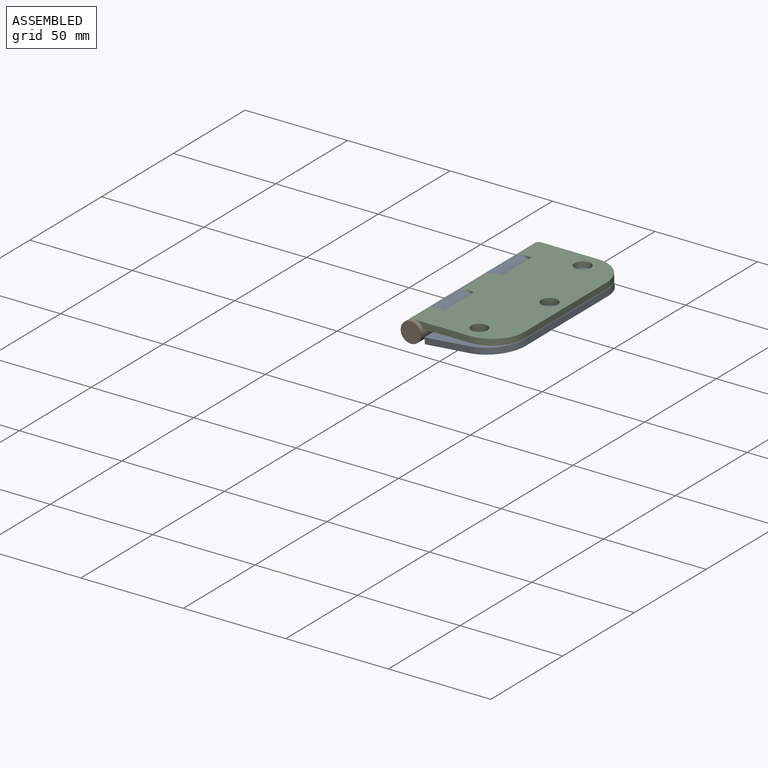
[diagram: assembled view]
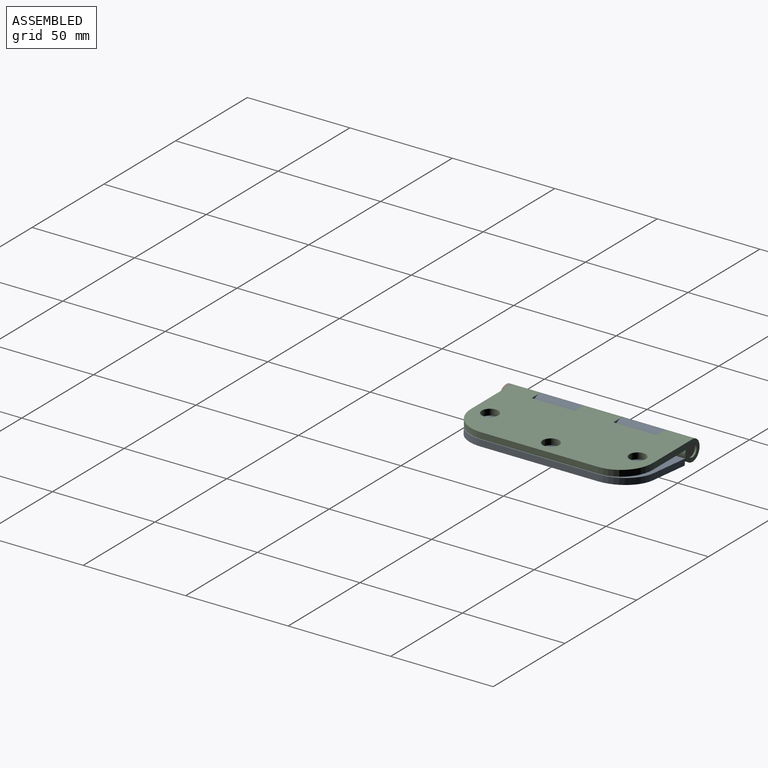
[diagram: assembled view, second angle]
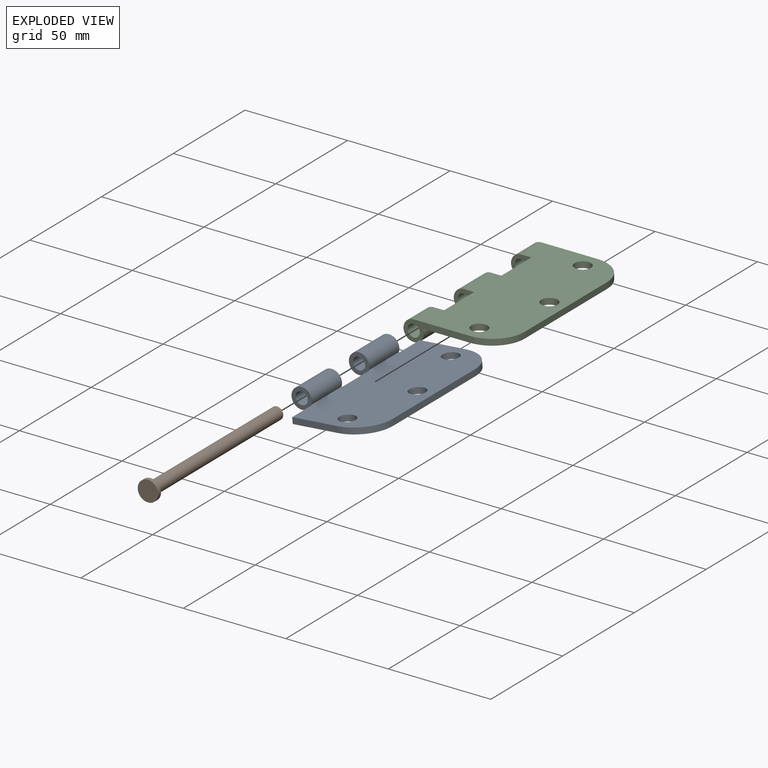
[diagram: exploded view]
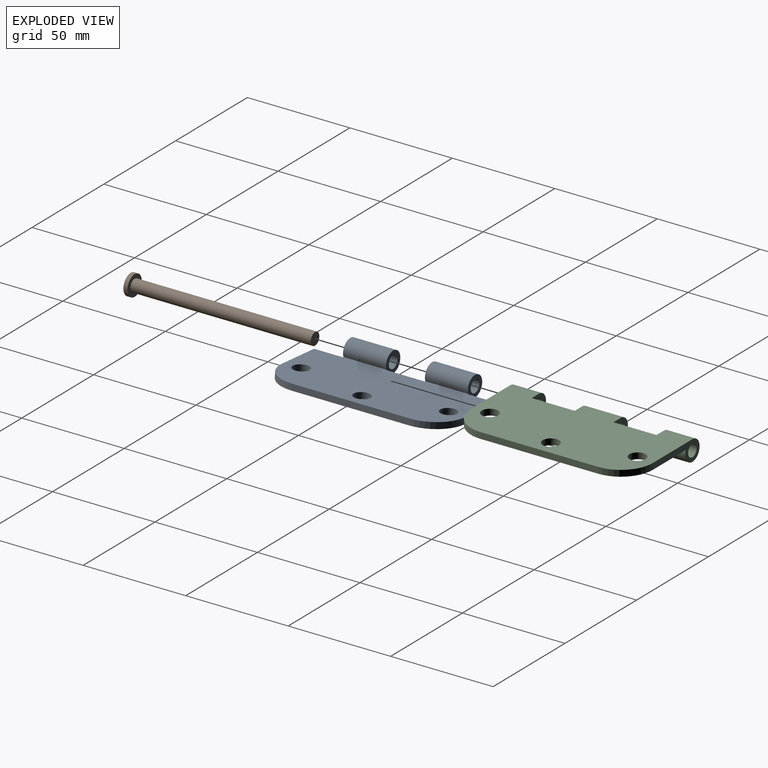
[diagram: exploded view, second angle]
ASSEMBLY  parts=3 mates=2
PART A: 21 faces, bbox 48.1x88.9x10 mm
  f0: plane 22.3x3mm, normal (0,1,0), area 66.9mm2, adj f2,f3,f8,f18
  f1: plane 22.3x3mm, normal (0,-1,0), area 66.9mm2, adj f2,f3,f7,f12
  f2: plane 88.9x43.1mm, normal (0,0,1), area 3338.6mm2, adj f0,f1,f4,f5,f6,f7,f8,f9
  f3: plane 88.9x38.52mm, normal (0,0,-1), area 3146.6mm2, adj f0,f1,f4,f5,f6,f7,f8,f9
  f4: cylinder r=5mm len=20.95mm, axis (0,-1,0), area 536.7mm2, adj f2,f3,f15,f19
  f5: cylinder r=5mm len=20.95mm, axis (0,-1,0), area 536.7mm2, adj f2,f3,f13,f16
  f6: plane 57.3x3mm, normal (1,0,0), area 171.9mm2, adj f2,f3,f7,f8
  f7: cylinder r=15.8mm len=15.8mm, axis (0,0,1), area 74.5mm2, adj f1,f2,f3,f6
  f8: cylinder r=15.8mm len=15.8mm, axis (0,0,-1), area 74.5mm2, adj f0,f2,f3,f6
  f9: cylinder r=4mm len=8mm, axis (0,0,1), area 75.4mm2, adj f2,f3
  f10: cylinder r=4mm len=8mm, axis (0,0,1), area 75.4mm2, adj f2,f3
  f11: cylinder r=4mm len=8mm, axis (0,0,1), area 75.4mm2, adj f2,f3
  f12: plane 14x3mm, normal (-1,0,0), area 42mm2, adj f1,f2,f3,f13
  f13: plane 10x10mm, normal (0,-1,0), area 55.4mm2, adj f2,f3,f5,f12,f20
  f14: plane 19x3mm, normal (-1,0,0), area 57mm2, adj f2,f3,f15,f16
  f15: plane 10x10mm, normal (0,-1,0), area 55.4mm2, adj f2,f3,f4,f14,f17
  f16: plane 10x10mm, normal (0,1,0), area 55.4mm2, adj f2,f3,f5,f14,f20
  f17: cylinder r=3mm len=20.95mm, axis (0,-1,0), area 394.9mm2, adj f15,f19
  f18: plane 14x3mm, normal (-1,0,0), area 42mm2, adj f0,f2,f3,f19
  f19: plane 10x10mm, normal (0,1,0), area 55.4mm2, adj f2,f3,f4,f17,f18
  f20: cylinder r=3mm len=20.95mm, axis (0,-1,0), area 394.9mm2, adj f13,f16
PART B: 5 faces, bbox 90x10x10 mm
  f0: plane 6x6mm, normal (-1,0,0), area 28.3mm2, adj f1
  f1: cylinder r=3mm len=88mm, axis (-1,0,0), area 1658.8mm2, adj f0,f2
  f2: plane 10x10mm, normal (-1,0,0), area 50.3mm2, adj f1,f3
  f3: cylinder r=5mm len=10mm, axis (-1,0,0), area 62.8mm2, adj f2,f4
  f4: plane 10x10mm, normal (1,0,0), area 78.5mm2, adj f3
PART C: 22 faces, bbox 48.1x88.9x10 mm
  f0: plane 88.9x43.1mm, normal (0,0,1), area 3363.6mm2, adj f2,f3,f4,f6,f7,f8,f9,f10
  f1: plane 88.9x38.52mm, normal (0,0,-1), area 3148.7mm2, adj f2,f3,f4,f6,f7,f8,f9,f10
  f2: cylinder r=5mm len=14mm, axis (0,-1,0), area 358.7mm2, adj f0,f1,f6,f20
  f3: cylinder r=5mm len=18.9mm, axis (0,-1,0), area 484.2mm2, adj f0,f1,f16,f21
  f4: cylinder r=5mm len=14mm, axis (0,-1,0), area 358.7mm2, adj f0,f1,f7,f17
  f5: cylinder r=3mm len=14mm, axis (0,-1,0), area 263.9mm2, adj f6,f20
  f6: plane 32.3x10mm, normal (0,1,0), area 122.3mm2, adj f0,f1,f2,f5,f10
  f7: plane 32.3x10mm, normal (0,-1,0), area 122.3mm2, adj f0,f1,f4,f9,f14
  f8: plane 57.3x3mm, normal (1,0,0), area 171.9mm2, adj f0,f1,f9,f10
  f9: cylinder r=15.8mm len=15.8mm, axis (0,0,1), area 74.5mm2, adj f0,f1,f7,f8
  f10: cylinder r=15.8mm len=15.8mm, axis (0,0,-1), area 74.5mm2, adj f0,f1,f6,f8
  f11: cylinder r=4mm len=8mm, axis (0,0,1), area 75.4mm2, adj f0,f1
  f12: cylinder r=4mm len=8mm, axis (0,0,1), area 75.4mm2, adj f0,f1
  f13: cylinder r=4mm len=8mm, axis (0,0,1), area 75.4mm2, adj f0,f1
  f14: cylinder r=3mm len=14mm, axis (0,-1,0), area 263.9mm2, adj f7,f17
  f15: plane 21x3mm, normal (-1,0,0), area 63mm2, adj f0,f1,f16,f17
  f16: plane 10x10mm, normal (0,-1,0), area 55.4mm2, adj f0,f1,f3,f15,f18
  f17: plane 10x10mm, normal (0,1,0), area 55.4mm2, adj f0,f1,f4,f14,f15
  f18: cylinder r=3mm len=18.9mm, axis (0,-1,0), area 356.3mm2, adj f16,f21
  f19: plane 21x3mm, normal (-1,0,0), area 63mm2, adj f0,f1,f20,f21
  f20: plane 10x10mm, normal (0,-1,0), area 55.4mm2, adj f0,f1,f2,f5,f19
  f21: plane 10x10mm, normal (0,1,0), area 55.4mm2, adj f0,f1,f3,f18,f19
PLACE A rot(axis=(-1,0,-0.04),180deg) t=(7.06,0.83,-0.44)mm
PLACE B rot(axis=(0.71,-0.71,0),180deg) t=(-14.07,-6.31,-0.54)mm
PLACE C t=(6.98,0.78,1.46)mm fixed
MATE revolute A.f4 <-> C.f2  axis (0,1,0) through (-17.07,-8.67,-0.54)mm
MATE fastened C.f2 <-> B.f1  axis (0,-1,0) through (-17.07,-43.67,-0.54)mm
